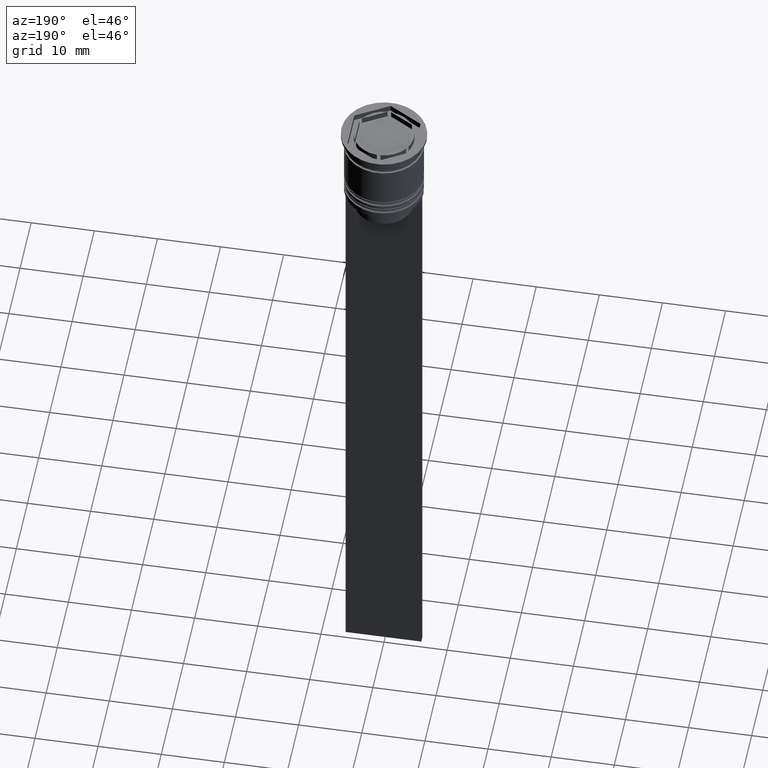
[diagram: clean part render]
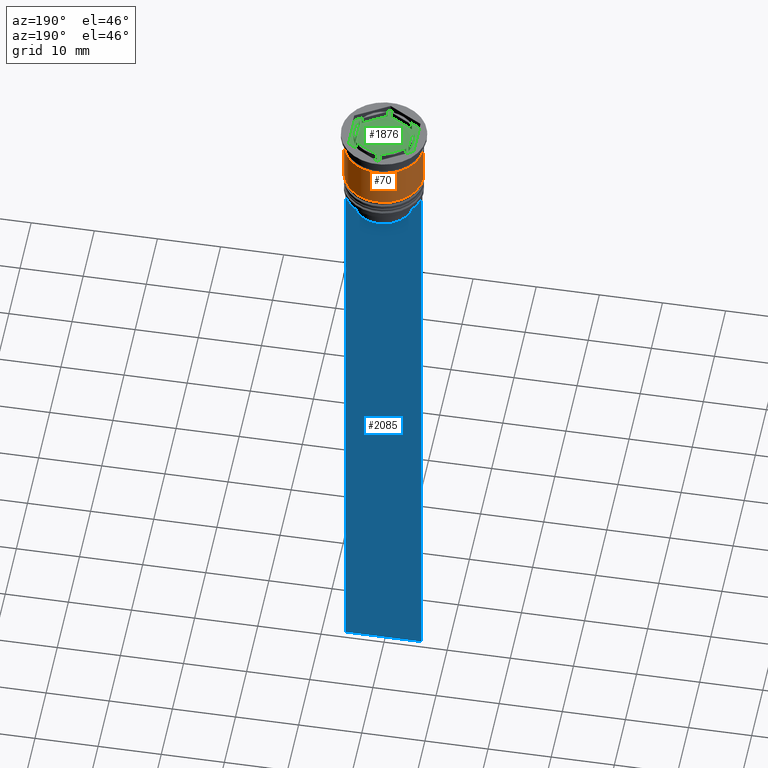
[diagram: same view with three faces highlighted in distinct colors, each labeled with its STEP entity id]
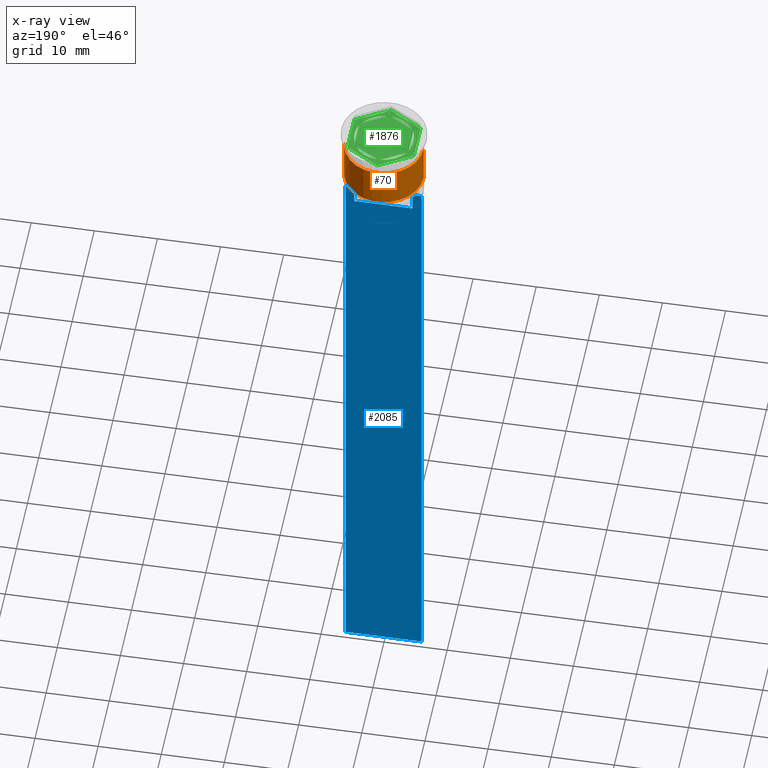
[diagram: x-ray of the same camera — body ghosted, the three highlighted faces saturated]
A machine part, auxiliary view with three faces highlighted in distinct colors.
The next image is the same camera in x-ray (body ghosted, the three faces saturated) — at least one of them is partly hidden behind the body in this view.
Their STEP definitions:

[orange] entity #70 — the highlighted cylindrical surface (partial cylindrical patch) has radius 6.25 mm, axis along (-0, -0, 1).
#7 = CARTESIAN_POINT ( 'NONE',  ( -6.249999999999999112, 7.654042494670956620E-16, -2.500000000000000444 ) ) ;
#9 = VERTEX_POINT ( 'NONE', #1698 ) ;
#30 = DIRECTION ( 'NONE',  ( -0.000000000000000000, -0.000000000000000000, 1.000000000000000000 ) ) ;
#41 = EDGE_LOOP ( 'NONE', ( #2343, #638, #2270, #135 ) ) ;
#66 = DIRECTION ( 'NONE',  ( -0.000000000000000000, -0.000000000000000000, 1.000000000000000000 ) ) ;
#70 = ADVANCED_FACE ( 'NONE', ( #1887 ), #1534, .T. ) ;
#135 = ORIENTED_EDGE ( 'NONE', *, *, #949, .F. ) ;
#272 = CARTESIAN_POINT ( 'NONE',  ( 0.000000000000000000, 0.000000000000000000, 0.000000000000000000 ) ) ;
#283 = DIRECTION ( 'NONE',  ( 1.000000000000000000, 0.000000000000000000, 0.000000000000000000 ) ) ;
#468 = DIRECTION ( 'NONE',  ( -0.000000000000000000, -0.000000000000000000, 1.000000000000000000 ) ) ;
#638 = ORIENTED_EDGE ( 'NONE', *, *, #731, .T. ) ;
#731 = EDGE_CURVE ( 'NONE', #9, #1505, #1869, .T. ) ;
#774 = VERTEX_POINT ( 'NONE', #2044 ) ;
#814 = CIRCLE ( 'NONE', #2096, 6.250000000000000888 ) ;
#835 = DIRECTION ( 'NONE',  ( -0.000000000000000000, -0.000000000000000000, 1.000000000000000000 ) ) ;
#936 = CARTESIAN_POINT ( 'NONE',  ( -6.250000000000000000, 7.654042494670957606E-16, 0.000000000000000000 ) ) ;
#949 = EDGE_CURVE ( 'NONE', #774, #1301, #2114, .T. ) ;
#979 = DIRECTION ( 'NONE',  ( -0.000000000000000000, -0.000000000000000000, 1.000000000000000000 ) ) ;
#1175 = EDGE_CURVE ( 'NONE', #774, #9, #814, .T. ) ;
#1283 = DIRECTION ( 'NONE',  ( 1.000000000000000000, 0.000000000000000000, 0.000000000000000000 ) ) ;
#1301 = VERTEX_POINT ( 'NONE', #1346 ) ;
#1346 = CARTESIAN_POINT ( 'NONE',  ( 6.249999999999999112, 0.000000000000000000, -2.500000000000000444 ) ) ;
#1450 = VECTOR ( 'NONE', #468, 1000.000000000000000 ) ;
#1505 = VERTEX_POINT ( 'NONE', #7 ) ;
#1517 = CARTESIAN_POINT ( 'NONE',  ( 0.000000000000000000, 0.000000000000000000, -2.500000000000000444 ) ) ;
#1534 = CYLINDRICAL_SURFACE ( 'NONE', #2140, 6.250000000000000000 ) ;
#1567 = VECTOR ( 'NONE', #979, 1000.000000000000000 ) ;
#1698 = CARTESIAN_POINT ( 'NONE',  ( -6.250000000000001776, 7.654042494670959579E-16, -9.000000000000001776 ) ) ;
#1726 = EDGE_CURVE ( 'NONE', #1301, #1505, #2212, .T. ) ;
#1861 = DIRECTION ( 'NONE',  ( 1.000000000000000000, 0.000000000000000000, 0.000000000000000000 ) ) ;
#1869 = LINE ( 'NONE', #936, #1567 ) ;
#1887 = FACE_OUTER_BOUND ( 'NONE', #41, .T. ) ;
#2044 = CARTESIAN_POINT ( 'NONE',  ( 6.250000000000000888, 0.000000000000000000, -9.000000000000001776 ) ) ;
#2086 = CARTESIAN_POINT ( 'NONE',  ( 6.250000000000000000, 0.000000000000000000, 0.000000000000000000 ) ) ;
#2095 = AXIS2_PLACEMENT_3D ( 'NONE', #1517, #835, #1861 ) ;
#2096 = AXIS2_PLACEMENT_3D ( 'NONE', #2222, #30, #1283 ) ;
#2114 = LINE ( 'NONE', #2086, #1450 ) ;
#2140 = AXIS2_PLACEMENT_3D ( 'NONE', #272, #66, #283 ) ;
#2212 = CIRCLE ( 'NONE', #2095, 6.249999999999999112 ) ;
#2222 = CARTESIAN_POINT ( 'NONE',  ( 0.000000000000000000, 0.000000000000000000, -9.000000000000001776 ) ) ;
#2270 = ORIENTED_EDGE ( 'NONE', *, *, #1726, .F. ) ;
#2343 = ORIENTED_EDGE ( 'NONE', *, *, #1175, .T. ) ;

[blue] entity #2085 — the highlighted planar face has unit normal (0, -1, -0).
#12 = CARTESIAN_POINT ( 'NONE',  ( 6.000000000000016875, 0.4999999999999982792, -112.5000000000000000 ) ) ;
#49 = B_SPLINE_CURVE_WITH_KNOTS ( 'NONE', 3,
 ( #1816, #1456, #1470, #2204 ),
 .UNSPECIFIED., .F., .F.,
 ( 4, 4 ),
 ( 0.02203698174624552433, 0.02275222543365896036 ),
 .UNSPECIFIED. ) ;
#82 = CARTESIAN_POINT ( 'NONE',  ( 4.623040125285526436, 0.4999999999999982792, -13.00000000000000178 ) ) ;
#118 = CARTESIAN_POINT ( 'NONE',  ( -5.125670687822231564, 0.4999999999999982792, -12.50000000000000000 ) ) ;
#149 = VERTEX_POINT ( 'NONE', #1930 ) ;
#154 = CARTESIAN_POINT ( 'NONE',  ( 6.000000000000016875, 0.4999999999999982792, -12.50000000000000000 ) ) ;
#238 = ORIENTED_EDGE ( 'NONE', *, *, #353, .T. ) ;
#302 = DIRECTION ( 'NONE',  ( 1.000000000000000000, 0.000000000000000000, 0.000000000000000000 ) ) ;
#312 = LINE ( 'NONE', #1016, #2143 ) ;
#331 = LINE ( 'NONE', #154, #2224 ) ;
#353 = EDGE_CURVE ( 'NONE', #1823, #1749, #1884, .T. ) ;
#358 = LINE ( 'NONE', #1032, #1121 ) ;
#360 = VECTOR ( 'NONE', #1696, 1000.000000000000000 ) ;
#368 = ORIENTED_EDGE ( 'NONE', *, *, #2046, .T. ) ;
#369 = ORIENTED_EDGE ( 'NONE', *, *, #1649, .T. ) ;
#407 = CARTESIAN_POINT ( 'NONE',  ( -5.125670687822231564, 0.4999999999999982792, -12.50000000000000000 ) ) ;
#465 = EDGE_LOOP ( 'NONE', ( #489, #238, #685, #1359, #1083, #369, #1809, #1533, #368, #1667 ) ) ;
#489 = ORIENTED_EDGE ( 'NONE', *, *, #1014, .T. ) ;
#498 = DIRECTION ( 'NONE',  ( 0.000000000000000000, 0.000000000000000000, -1.000000000000000000 ) ) ;
#517 = VECTOR ( 'NONE', #2280, 1000.000000000000000 ) ;
#546 = VERTEX_POINT ( 'NONE', #82 ) ;
#559 = CARTESIAN_POINT ( 'NONE',  ( -4.790630915080666519, 0.4999999999999982792, -12.83338087185995313 ) ) ;
#580 = EDGE_CURVE ( 'NONE', #1749, #2092, #312, .T. ) ;
#657 = CARTESIAN_POINT ( 'NONE',  ( 6.000000000000016875, 0.4999999999999982792, -0.4584054212077061097 ) ) ;
#659 = VERTEX_POINT ( 'NONE', #1955 ) ;
#685 = ORIENTED_EDGE ( 'NONE', *, *, #580, .T. ) ;
#688 = EDGE_CURVE ( 'NONE', #950, #149, #331, .T. ) ;
#830 = LINE ( 'NONE', #657, #1493 ) ;
#853 = VERTEX_POINT ( 'NONE', #1692 ) ;
#861 = LINE ( 'NONE', #1609, #1610 ) ;
#914 = LINE ( 'NONE', #12, #1521 ) ;
#924 = DIRECTION ( 'NONE',  ( -1.000000000000000000, 0.000000000000000000, 0.000000000000000000 ) ) ;
#935 = EDGE_CURVE ( 'NONE', #149, #2130, #830, .T. ) ;
#950 = VERTEX_POINT ( 'NONE', #2065 ) ;
#952 = CARTESIAN_POINT ( 'NONE',  ( 6.000000000000016875, 0.4999999999999982792, -0.4584054212077061097 ) ) ;
#1014 = EDGE_CURVE ( 'NONE', #853, #1823, #861, .T. ) ;
#1016 = CARTESIAN_POINT ( 'NONE',  ( -4.623040125285526436, 0.4999999999999982792, 0.000000000000000000 ) ) ;
#1032 = CARTESIAN_POINT ( 'NONE',  ( 0.000000000000000000, 0.4999999999999987232, -15.50000000000000000 ) ) ;
#1066 = DIRECTION ( 'NONE',  ( 1.000000000000000000, 0.000000000000000000, 0.000000000000000000 ) ) ;
#1083 = ORIENTED_EDGE ( 'NONE', *, *, #1733, .T. ) ;
#1121 = VECTOR ( 'NONE', #1066, 1000.000000000000000 ) ;
#1287 = CARTESIAN_POINT ( 'NONE',  ( -4.623040125285526436, 0.4999999999999982792, -13.00000000000000178 ) ) ;
#1309 = CARTESIAN_POINT ( 'NONE',  ( -4.623040125285526436, 0.4999999999999987232, -15.50000000000000000 ) ) ;
#1329 = CARTESIAN_POINT ( 'NONE',  ( 4.623040125285526436, 0.4999999999999982792, 0.000000000000000000 ) ) ;
#1348 = DIRECTION ( 'NONE',  ( 0.000000000000000000, 0.000000000000000000, -1.000000000000000000 ) ) ;
#1359 = ORIENTED_EDGE ( 'NONE', *, *, #1429, .T. ) ;
#1401 = CARTESIAN_POINT ( 'NONE',  ( -5.999999999999983125, 0.4999999999999982792, -0.4584054212077061097 ) ) ;
#1429 = EDGE_CURVE ( 'NONE', #2092, #659, #358, .T. ) ;
#1440 = FACE_OUTER_BOUND ( 'NONE', #465, .T. ) ;
#1456 = CARTESIAN_POINT ( 'NONE',  ( 4.790630799407576745, 0.4999999999999982792, -12.83338098686239093 ) ) ;
#1470 = CARTESIAN_POINT ( 'NONE',  ( 4.958169719475987058, 0.4999999999999982792, -12.66670967060858111 ) ) ;
#1476 = DIRECTION ( 'NONE',  ( 0.000000000000000000, -1.000000000000000000, -0.000000000000000000 ) ) ;
#1493 = VECTOR ( 'NONE', #1348, 1000.000000000000000 ) ;
#1521 = VECTOR ( 'NONE', #924, 1000.000000000000000 ) ;
#1533 = ORIENTED_EDGE ( 'NONE', *, *, #935, .T. ) ;
#1571 = DIRECTION ( 'NONE',  ( 1.000000000000000000, 0.000000000000000000, 0.000000000000000000 ) ) ;
#1609 = CARTESIAN_POINT ( 'NONE',  ( 6.000000000000016875, 0.4999999999999982792, -12.50000000000000000 ) ) ;
#1610 = VECTOR ( 'NONE', #1571, 1000.000000000000000 ) ;
#1649 = EDGE_CURVE ( 'NONE', #546, #950, #49, .T. ) ;
#1667 = ORIENTED_EDGE ( 'NONE', *, *, #2306, .F. ) ;
#1692 = CARTESIAN_POINT ( 'NONE',  ( -5.999999999999983125, 0.4999999999999985012, -12.50000000000000000 ) ) ;
#1696 = DIRECTION ( 'NONE',  ( -0.000000000000000000, -0.000000000000000000, 1.000000000000000000 ) ) ;
#1733 = EDGE_CURVE ( 'NONE', #659, #546, #2241, .T. ) ;
#1749 = VERTEX_POINT ( 'NONE', #2272 ) ;
#1809 = ORIENTED_EDGE ( 'NONE', *, *, #688, .T. ) ;
#1816 = CARTESIAN_POINT ( 'NONE',  ( 4.623040125285526436, 0.4999999999999982792, -13.00000000000000178 ) ) ;
#1823 = VERTEX_POINT ( 'NONE', #118 ) ;
#1841 = PLANE ( 'NONE',  #1903 ) ;
#1884 = B_SPLINE_CURVE_WITH_KNOTS ( 'NONE', 3,
 ( #407, #2194, #559, #1287 ),
 .UNSPECIFIED., .F., .F.,
 ( 4, 4 ),
 ( 0.008759809102772707357, 0.009468778395565351919 ),
 .UNSPECIFIED. ) ;
#1903 = AXIS2_PLACEMENT_3D ( 'NONE', #952, #1476, #2213 ) ;
#1930 = CARTESIAN_POINT ( 'NONE',  ( 6.000000000000016875, 0.4999999999999982792, -12.50000000000000000 ) ) ;
#1955 = CARTESIAN_POINT ( 'NONE',  ( 4.623040125285526436, 0.4999999999999987232, -15.50000000000000000 ) ) ;
#2010 = CARTESIAN_POINT ( 'NONE',  ( -5.999999999999983125, 0.4999999999999982792, -112.5000000000000000 ) ) ;
#2046 = EDGE_CURVE ( 'NONE', #2130, #2070, #914, .T. ) ;
#2065 = CARTESIAN_POINT ( 'NONE',  ( 5.125670687822231564, 0.4999999999999982792, -12.50000000000000000 ) ) ;
#2070 = VERTEX_POINT ( 'NONE', #2010 ) ;
#2085 = ADVANCED_FACE ( 'NONE', ( #1440 ), #1841, .F. ) ;
#2092 = VERTEX_POINT ( 'NONE', #1309 ) ;
#2125 = LINE ( 'NONE', #1401, #517 ) ;
#2130 = VERTEX_POINT ( 'NONE', #2259 ) ;
#2143 = VECTOR ( 'NONE', #498, 1000.000000000000000 ) ;
#2194 = CARTESIAN_POINT ( 'NONE',  ( -4.958169823806762189, 0.4999999999999982792, -12.66670956677067750 ) ) ;
#2204 = CARTESIAN_POINT ( 'NONE',  ( 5.125670687822231564, 0.4999999999999982792, -12.50000000000000000 ) ) ;
#2213 = DIRECTION ( 'NONE',  ( 0.000000000000000000, 0.000000000000000000, -1.000000000000000000 ) ) ;
#2224 = VECTOR ( 'NONE', #302, 1000.000000000000000 ) ;
#2241 = LINE ( 'NONE', #1329, #360 ) ;
#2259 = CARTESIAN_POINT ( 'NONE',  ( 6.000000000000016875, 0.4999999999999982792, -112.5000000000000000 ) ) ;
#2272 = CARTESIAN_POINT ( 'NONE',  ( -4.623040125285526436, 0.4999999999999982792, -13.00000000000000178 ) ) ;
#2280 = DIRECTION ( 'NONE',  ( 0.000000000000000000, 0.000000000000000000, -1.000000000000000000 ) ) ;
#2306 = EDGE_CURVE ( 'NONE', #853, #2070, #2125, .T. ) ;

[green] entity #1876 — the highlighted planar face has unit normal (0, 0, 1).
#15 = ORIENTED_EDGE ( 'NONE', *, *, #702, .F. ) ;
#17 = EDGE_CURVE ( 'NONE', #231, #1109, #782, .T. ) ;
#23 = DIRECTION ( 'NONE',  ( 1.000000000000000000, 0.000000000000000000, 0.000000000000000000 ) ) ;
#35 = EDGE_LOOP ( 'NONE', ( #50, #311 ) ) ;
#36 = CARTESIAN_POINT ( 'NONE',  ( 5.250000000000000888, -3.031088913245536087, -1.000000000000000000 ) ) ;
#50 = ORIENTED_EDGE ( 'NONE', *, *, #1962, .F. ) ;
#68 = CIRCLE ( 'NONE', #372, 4.750000000000000888 ) ;
#91 = VERTEX_POINT ( 'NONE', #1151 ) ;
#96 = VECTOR ( 'NONE', #690, 1000.000000000000000 ) ;
#131 = AXIS2_PLACEMENT_3D ( 'NONE', #886, #1598, #23 ) ;
#150 = CARTESIAN_POINT ( 'NONE',  ( -5.250000000000000888, 3.031088913245535643, -1.000000000000000000 ) ) ;
#155 = PLANE ( 'NONE',  #1827 ) ;
#181 = VECTOR ( 'NONE', #2154, 1000.000000000000000 ) ;
#190 = VERTEX_POINT ( 'NONE', #1031 ) ;
#191 = LINE ( 'NONE', #36, #819 ) ;
#207 = CIRCLE ( 'NONE', #131, 4.750000000000000888 ) ;
#219 = ORIENTED_EDGE ( 'NONE', *, *, #1220, .T. ) ;
#231 = VERTEX_POINT ( 'NONE', #1244 ) ;
#245 = VECTOR ( 'NONE', #1485, 1000.000000000000114 ) ;
#255 = VECTOR ( 'NONE', #1585, 1000.000000000000000 ) ;
#280 = CARTESIAN_POINT ( 'NONE',  ( 0.000000000000000000, 0.000000000000000000, -1.000000000000000000 ) ) ;
#294 = DIRECTION ( 'NONE',  ( -0.8660254037844387076, -0.4999999999999999445, 0.000000000000000000 ) ) ;
#311 = ORIENTED_EDGE ( 'NONE', *, *, #813, .F. ) ;
#313 = FACE_BOUND ( 'NONE', #1591, .T. ) ;
#343 = LINE ( 'NONE', #1780, #181 ) ;
#355 = FACE_BOUND ( 'NONE', #860, .T. ) ;
#372 = AXIS2_PLACEMENT_3D ( 'NONE', #2038, #1516, #2230 ) ;
#380 = CARTESIAN_POINT ( 'NONE',  ( 0.000000000000000000, 0.000000000000000000, -1.000000000000000000 ) ) ;
#382 = VERTEX_POINT ( 'NONE', #1993 ) ;
#387 = CARTESIAN_POINT ( 'NONE',  ( 5.250000000000000888, 3.031088913245536087, -1.000000000000000000 ) ) ;
#393 = CARTESIAN_POINT ( 'NONE',  ( 3.962117307087384521, -2.619947794304042787, -1.000000000000000888 ) ) ;
#424 = EDGE_CURVE ( 'NONE', #1094, #1091, #1626, .T. ) ;
#429 = DIRECTION ( 'NONE',  ( 0.000000000000000000, 0.000000000000000000, 1.000000000000000000 ) ) ;
#434 = AXIS2_PLACEMENT_3D ( 'NONE', #280, #1754, #524 ) ;
#458 = CARTESIAN_POINT ( 'NONE',  ( -4.250000000000000000, 2.453738644055909468, -1.000000000000000888 ) ) ;
#483 = EDGE_CURVE ( 'NONE', #2251, #1725, #68, .T. ) ;
#488 = VERTEX_POINT ( 'NONE', #606 ) ;
#509 = DIRECTION ( 'NONE',  ( -0.8660254037844385966, -0.5000000000000000000, 0.000000000000000000 ) ) ;
#524 = DIRECTION ( 'NONE',  ( 1.000000000000000000, 0.000000000000000000, 0.000000000000000000 ) ) ;
#542 = EDGE_CURVE ( 'NONE', #1275, #1279, #2033, .T. ) ;
#552 = AXIS2_PLACEMENT_3D ( 'NONE', #2060, #1708, #810 ) ;
#556 = DIRECTION ( 'NONE',  ( 0.000000000000000000, 1.000000000000000000, 0.000000000000000000 ) ) ;
#584 = CIRCLE ( 'NONE', #434, 4.750000000000000888 ) ;
#592 = DIRECTION ( 'NONE',  ( 0.000000000000000000, -1.000000000000000000, 0.000000000000000000 ) ) ;
#598 = CARTESIAN_POINT ( 'NONE',  ( 3.962117307087384521, 2.619947794304043232, -1.000000000000000888 ) ) ;
#602 = ORIENTED_EDGE ( 'NONE', *, *, #2036, .F. ) ;
#606 = CARTESIAN_POINT ( 'NONE',  ( 0.2878826929126150347, -4.741268137863686505, -1.000000000000000888 ) ) ;
#607 = LINE ( 'NONE', #1352, #1154 ) ;
#614 = ORIENTED_EDGE ( 'NONE', *, *, #17, .F. ) ;
#656 = EDGE_CURVE ( 'NONE', #2238, #1094, #1564, .T. ) ;
#673 = ORIENTED_EDGE ( 'NONE', *, *, #656, .T. ) ;
#690 = DIRECTION ( 'NONE',  ( 0.8660254037844387076, -0.4999999999999998335, 0.000000000000000000 ) ) ;
#697 = EDGE_CURVE ( 'NONE', #1091, #1703, #2118, .T. ) ;
#702 = EDGE_CURVE ( 'NONE', #382, #2153, #343, .T. ) ;
#710 = ORIENTED_EDGE ( 'NONE', *, *, #542, .F. ) ;
#740 = AXIS2_PLACEMENT_3D ( 'NONE', #2049, #429, #1017 ) ;
#742 = VECTOR ( 'NONE', #1731, 1000.000000000000000 ) ;
#751 = DIRECTION ( 'NONE',  ( 0.000000000000000000, 0.000000000000000000, 1.000000000000000000 ) ) ;
#782 = CIRCLE ( 'NONE', #552, 4.750000000000000888 ) ;
#810 = DIRECTION ( 'NONE',  ( 1.000000000000000000, 0.000000000000000000, 0.000000000000000000 ) ) ;
#813 = EDGE_CURVE ( 'NONE', #1297, #1880, #1137, .T. ) ;
#819 = VECTOR ( 'NONE', #556, 1000.000000000000000 ) ;
#825 = ORIENTED_EDGE ( 'NONE', *, *, #1821, .F. ) ;
#860 = EDGE_LOOP ( 'NONE', ( #883, #2089, #1289 ) ) ;
#866 = CARTESIAN_POINT ( 'NONE',  ( -3.962117307087385409, -2.619947794304041899, -1.000000000000000888 ) ) ;
#875 = DIRECTION ( 'NONE',  ( 0.000000000000000000, 0.000000000000000000, 1.000000000000000000 ) ) ;
#883 = ORIENTED_EDGE ( 'NONE', *, *, #2032, .F. ) ;
#885 = CARTESIAN_POINT ( 'NONE',  ( -5.250000000000000888, -3.031088913245536087, -1.000000000000000000 ) ) ;
#886 = CARTESIAN_POINT ( 'NONE',  ( 0.000000000000000000, 0.000000000000000000, -1.000000000000000000 ) ) ;
#939 = VECTOR ( 'NONE', #592, 1000.000000000000000 ) ;
#965 = CARTESIAN_POINT ( 'NONE',  ( 0.2878826929126145906, 4.741268137863685617, -1.000000000000000888 ) ) ;
#1017 = DIRECTION ( 'NONE',  ( 1.000000000000000000, 0.000000000000000000, 0.000000000000000000 ) ) ;
#1022 = LINE ( 'NONE', #458, #742 ) ;
#1031 = CARTESIAN_POINT ( 'NONE',  ( -4.250000000000000000, 2.121320343559643717, -1.000000000000000888 ) ) ;
#1038 = CARTESIAN_POINT ( 'NONE',  ( 0.000000000000000000, 0.000000000000000000, -1.000000000000000000 ) ) ;
#1077 = EDGE_LOOP ( 'NONE', ( #614, #602 ) ) ;
#1091 = VERTEX_POINT ( 'NONE', #2313 ) ;
#1094 = VERTEX_POINT ( 'NONE', #150 ) ;
#1103 = DIRECTION ( 'NONE',  ( 1.000000000000000000, 0.000000000000000000, 0.000000000000000000 ) ) ;
#1109 = VERTEX_POINT ( 'NONE', #1257 ) ;
#1126 = VERTEX_POINT ( 'NONE', #2151 ) ;
#1128 = VECTOR ( 'NONE', #1474, 1000.000000000000000 ) ;
#1137 = LINE ( 'NONE', #1669, #1128 ) ;
#1151 = CARTESIAN_POINT ( 'NONE',  ( 5.250000000000000888, 3.031088913245536087, -1.000000000000000000 ) ) ;
#1154 = VECTOR ( 'NONE', #294, 1000.000000000000000 ) ;
#1160 = DIRECTION ( 'NONE',  ( 1.000000000000000000, 0.000000000000000000, 0.000000000000000000 ) ) ;
#1192 = ORIENTED_EDGE ( 'NONE', *, *, #1778, .F. ) ;
#1194 = CARTESIAN_POINT ( 'NONE',  ( -4.250000000000000000, -2.121320343559643717, -1.000000000000000888 ) ) ;
#1220 = EDGE_CURVE ( 'NONE', #1703, #1126, #1448, .T. ) ;
#1233 = VECTOR ( 'NONE', #509, 1000.000000000000227 ) ;
#1241 = DIRECTION ( 'NONE',  ( 1.000000000000000000, 0.000000000000000000, -0.000000000000000000 ) ) ;
#1244 = CARTESIAN_POINT ( 'NONE',  ( -0.2878826929126160894, 4.741268137863686505, -1.000000000000000888 ) ) ;
#1246 = ORIENTED_EDGE ( 'NONE', *, *, #1248, .T. ) ;
#1248 = EDGE_CURVE ( 'NONE', #91, #2238, #1855, .T. ) ;
#1257 = CARTESIAN_POINT ( 'NONE',  ( -3.962117307087385409, 2.619947794304041899, -1.000000000000000888 ) ) ;
#1275 = VERTEX_POINT ( 'NONE', #598 ) ;
#1279 = VERTEX_POINT ( 'NONE', #965 ) ;
#1289 = ORIENTED_EDGE ( 'NONE', *, *, #483, .F. ) ;
#1290 = DIRECTION ( 'NONE',  ( -0.8660254037844385966, 0.4999999999999998890, 0.000000000000000000 ) ) ;
#1294 = ORIENTED_EDGE ( 'NONE', *, *, #697, .T. ) ;
#1297 = VERTEX_POINT ( 'NONE', #2287 ) ;
#1332 = VECTOR ( 'NONE', #1814, 1000.000000000000000 ) ;
#1352 = CARTESIAN_POINT ( 'NONE',  ( -8.673617379884035472E-16, -4.907477288111819824, -1.000000000000000888 ) ) ;
#1355 = EDGE_CURVE ( 'NONE', #1725, #190, #1022, .T. ) ;
#1393 = CARTESIAN_POINT ( 'NONE',  ( 4.250000000000000000, 2.453738644055910800, -1.000000000000000888 ) ) ;
#1417 = EDGE_LOOP ( 'NONE', ( #1246, #673, #2152, #1294, #219, #2039 ) ) ;
#1420 = FACE_BOUND ( 'NONE', #35, .T. ) ;
#1448 = LINE ( 'NONE', #2189, #245 ) ;
#1449 = AXIS2_PLACEMENT_3D ( 'NONE', #2240, #2057, #1160 ) ;
#1474 = DIRECTION ( 'NONE',  ( -0.8660254037844385966, 0.5000000000000001110, 0.000000000000000000 ) ) ;
#1477 = CARTESIAN_POINT ( 'NONE',  ( -5.250000000000000888, 3.031088913245535643, -1.000000000000000000 ) ) ;
#1485 = DIRECTION ( 'NONE',  ( 0.8660254037844385966, 0.4999999999999999445, 0.000000000000000000 ) ) ;
#1516 = DIRECTION ( 'NONE',  ( 0.000000000000000000, 0.000000000000000000, 1.000000000000000000 ) ) ;
#1558 = CIRCLE ( 'NONE', #740, 4.750000000000000888 ) ;
#1564 = LINE ( 'NONE', #2127, #1233 ) ;
#1565 = FACE_BOUND ( 'NONE', #2045, .T. ) ;
#1576 = VERTEX_POINT ( 'NONE', #393 ) ;
#1585 = DIRECTION ( 'NONE',  ( 0.8660254037844387076, -0.4999999999999998335, 0.000000000000000000 ) ) ;
#1591 = EDGE_LOOP ( 'NONE', ( #1804, #1192 ) ) ;
#1598 = DIRECTION ( 'NONE',  ( 0.000000000000000000, 0.000000000000000000, 1.000000000000000000 ) ) ;
#1626 = LINE ( 'NONE', #1477, #939 ) ;
#1652 = LINE ( 'NONE', #2021, #1332 ) ;
#1657 = EDGE_LOOP ( 'NONE', ( #825, #15 ) ) ;
#1669 = CARTESIAN_POINT ( 'NONE',  ( -4.250000000000000000, -2.453738644055909912, -1.000000000000000888 ) ) ;
#1670 = CARTESIAN_POINT ( 'NONE',  ( 0.000000000000000000, 6.062177826491072175, -1.000000000000000000 ) ) ;
#1703 = VERTEX_POINT ( 'NONE', #2081 ) ;
#1708 = DIRECTION ( 'NONE',  ( 0.000000000000000000, 0.000000000000000000, 1.000000000000000000 ) ) ;
#1725 = VERTEX_POINT ( 'NONE', #1194 ) ;
#1728 = FACE_BOUND ( 'NONE', #1657, .T. ) ;
#1731 = DIRECTION ( 'NONE',  ( 0.000000000000000000, 1.000000000000000000, 0.000000000000000000 ) ) ;
#1744 = EDGE_CURVE ( 'NONE', #488, #1576, #1558, .T. ) ;
#1754 = DIRECTION ( 'NONE',  ( 0.000000000000000000, 0.000000000000000000, 1.000000000000000000 ) ) ;
#1778 = EDGE_CURVE ( 'NONE', #1576, #488, #607, .T. ) ;
#1780 = CARTESIAN_POINT ( 'NONE',  ( 4.249999999999999112, -2.453738644055910356, -1.000000000000000888 ) ) ;
#1790 = CIRCLE ( 'NONE', #2289, 4.750000000000000888 ) ;
#1804 = ORIENTED_EDGE ( 'NONE', *, *, #1744, .F. ) ;
#1814 = DIRECTION ( 'NONE',  ( 0.8660254037844385966, 0.5000000000000001110, -0.000000000000000000 ) ) ;
#1821 = EDGE_CURVE ( 'NONE', #2153, #382, #584, .T. ) ;
#1827 = AXIS2_PLACEMENT_3D ( 'NONE', #1038, #875, #1241 ) ;
#1855 = LINE ( 'NONE', #387, #2288 ) ;
#1876 = ADVANCED_FACE ( 'NONE', ( #1565, #1728, #313, #1420, #355, #2108, #1940 ), #155, .T. ) ;
#1880 = VERTEX_POINT ( 'NONE', #866 ) ;
#1909 = CARTESIAN_POINT ( 'NONE',  ( -4.750000000000000888, 0.000000000000000000, -1.000000000000000000 ) ) ;
#1917 = EDGE_CURVE ( 'NONE', #1279, #1275, #1978, .T. ) ;
#1940 = FACE_OUTER_BOUND ( 'NONE', #1417, .T. ) ;
#1962 = EDGE_CURVE ( 'NONE', #1880, #1297, #207, .T. ) ;
#1978 = LINE ( 'NONE', #1393, #96 ) ;
#1993 = CARTESIAN_POINT ( 'NONE',  ( 4.249999999999999112, 2.121320343559644162, -1.000000000000000888 ) ) ;
#2021 = CARTESIAN_POINT ( 'NONE',  ( 4.336808689942017736E-16, 4.907477288111819824, -1.000000000000000888 ) ) ;
#2032 = EDGE_CURVE ( 'NONE', #190, #2251, #1790, .T. ) ;
#2033 = CIRCLE ( 'NONE', #1449, 4.750000000000000888 ) ;
#2036 = EDGE_CURVE ( 'NONE', #1109, #231, #1652, .T. ) ;
#2038 = CARTESIAN_POINT ( 'NONE',  ( 0.000000000000000000, 0.000000000000000000, -1.000000000000000000 ) ) ;
#2039 = ORIENTED_EDGE ( 'NONE', *, *, #2073, .T. ) ;
#2045 = EDGE_LOOP ( 'NONE', ( #710, #2197 ) ) ;
#2049 = CARTESIAN_POINT ( 'NONE',  ( 0.000000000000000000, 0.000000000000000000, -1.000000000000000000 ) ) ;
#2057 = DIRECTION ( 'NONE',  ( 0.000000000000000000, 0.000000000000000000, 1.000000000000000000 ) ) ;
#2060 = CARTESIAN_POINT ( 'NONE',  ( 0.000000000000000000, 0.000000000000000000, -1.000000000000000000 ) ) ;
#2069 = CARTESIAN_POINT ( 'NONE',  ( 4.249999999999999112, -2.121320343559645938, -1.000000000000000888 ) ) ;
#2073 = EDGE_CURVE ( 'NONE', #1126, #91, #191, .T. ) ;
#2081 = CARTESIAN_POINT ( 'NONE',  ( 8.729740977282959667E-16, -6.062177826491071286, -1.000000000000000000 ) ) ;
#2089 = ORIENTED_EDGE ( 'NONE', *, *, #1355, .F. ) ;
#2108 = FACE_BOUND ( 'NONE', #1077, .T. ) ;
#2118 = LINE ( 'NONE', #885, #255 ) ;
#2127 = CARTESIAN_POINT ( 'NONE',  ( 0.000000000000000000, 6.062177826491072175, -1.000000000000000000 ) ) ;
#2151 = CARTESIAN_POINT ( 'NONE',  ( 5.250000000000000888, -3.031088913245536087, -1.000000000000000000 ) ) ;
#2152 = ORIENTED_EDGE ( 'NONE', *, *, #424, .T. ) ;
#2153 = VERTEX_POINT ( 'NONE', #2069 ) ;
#2154 = DIRECTION ( 'NONE',  ( -1.767428939690775055E-16, -1.000000000000000000, 0.000000000000000000 ) ) ;
#2189 = CARTESIAN_POINT ( 'NONE',  ( 8.729740977282959667E-16, -6.062177826491071286, -1.000000000000000000 ) ) ;
#2197 = ORIENTED_EDGE ( 'NONE', *, *, #1917, .F. ) ;
#2230 = DIRECTION ( 'NONE',  ( 1.000000000000000000, 0.000000000000000000, 0.000000000000000000 ) ) ;
#2238 = VERTEX_POINT ( 'NONE', #1670 ) ;
#2240 = CARTESIAN_POINT ( 'NONE',  ( 0.000000000000000000, 0.000000000000000000, -1.000000000000000000 ) ) ;
#2251 = VERTEX_POINT ( 'NONE', #1909 ) ;
#2287 = CARTESIAN_POINT ( 'NONE',  ( -0.2878826929126160894, -4.741268137863686505, -1.000000000000000888 ) ) ;
#2288 = VECTOR ( 'NONE', #1290, 1000.000000000000227 ) ;
#2289 = AXIS2_PLACEMENT_3D ( 'NONE', #380, #751, #1103 ) ;
#2313 = CARTESIAN_POINT ( 'NONE',  ( -5.250000000000000888, -3.031088913245536087, -1.000000000000000000 ) ) ;